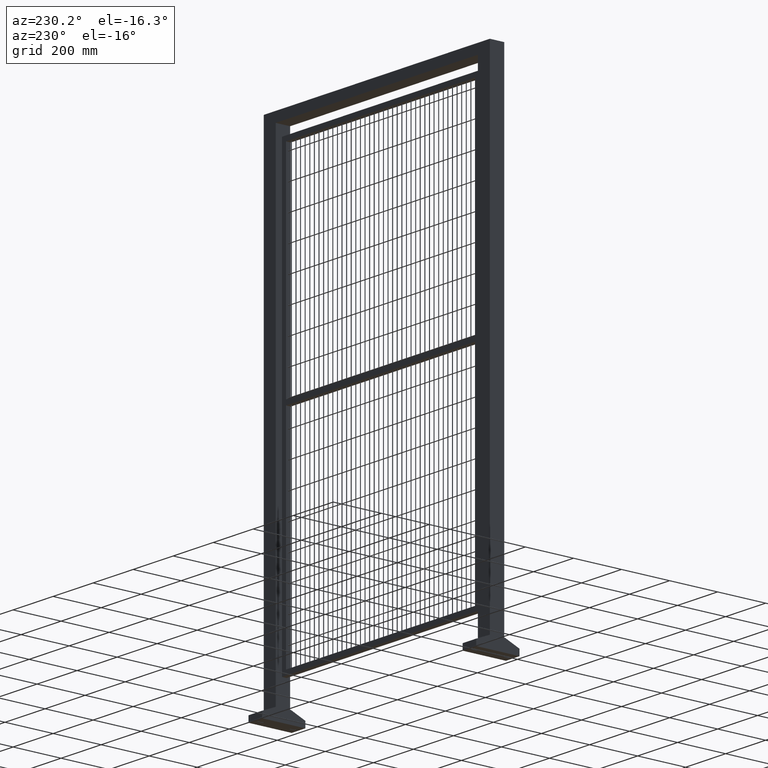
[diagram: clean part render]
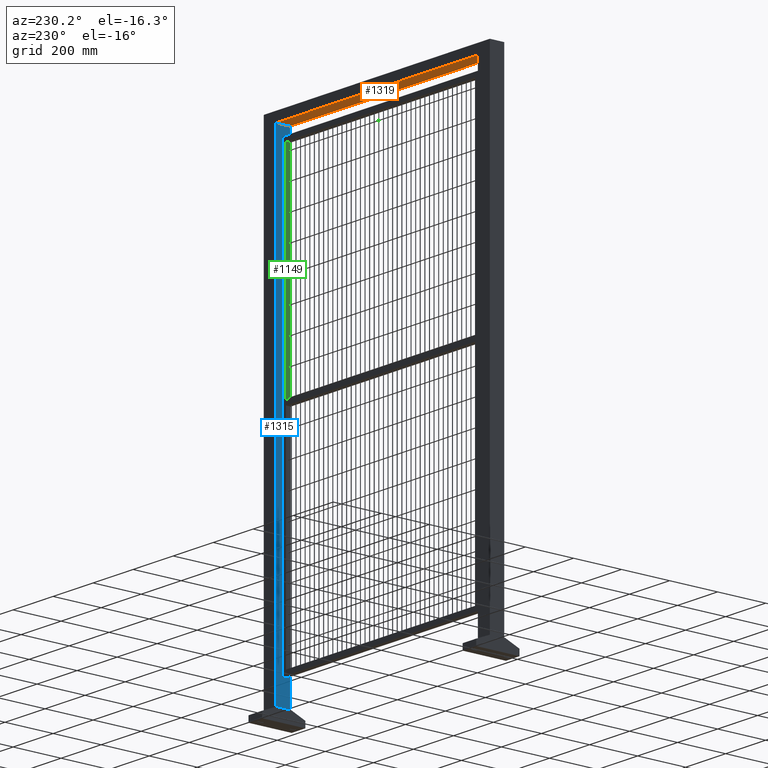
[diagram: same view with three faces highlighted in distinct colors, each labeled with its STEP entity id]
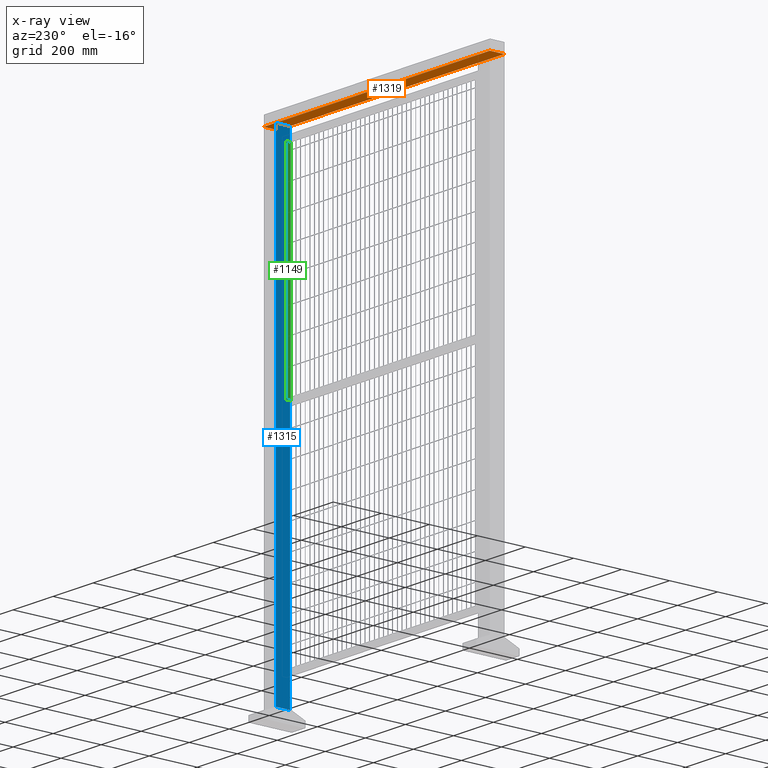
[diagram: x-ray of the same camera — body ghosted, the three highlighted faces saturated]
A machine part, auxiliary view with three faces highlighted in distinct colors.
The next image is the same camera in x-ray (body ghosted, the three faces saturated) — at least one of them is partly hidden behind the body in this view.
Their STEP definitions:

[orange] entity #1319 — the highlighted planar face has unit normal (-0, 0, 1).
#161=LINE('',#4553,#255);
#163=LINE('',#4557,#257);
#164=LINE('',#4559,#258);
#165=LINE('',#4561,#259);
#255=VECTOR('',#3916,1.);
#257=VECTOR('',#3920,1.);
#258=VECTOR('',#3921,1.);
#259=VECTOR('',#3922,1.);
#954=PLANE('',#3141);
#1103=FACE_OUTER_BOUND('',#1814,.T.);
#1319=ADVANCED_FACE('',(#1103),#954,.F.);
#1814=EDGE_LOOP('',(#2246,#2247,#2248,#2249));
#2246=ORIENTED_EDGE('',*,*,#2667,.T.);
#2247=ORIENTED_EDGE('',*,*,#2668,.F.);
#2248=ORIENTED_EDGE('',*,*,#2669,.F.);
#2249=ORIENTED_EDGE('',*,*,#2665,.T.);
#2446=VERTEX_POINT('',#4552);
#2447=VERTEX_POINT('',#4554);
#2448=VERTEX_POINT('',#4558);
#2449=VERTEX_POINT('',#4560);
#2665=EDGE_CURVE('',#2447,#2446,#161,.T.);
#2667=EDGE_CURVE('',#2446,#2448,#163,.T.);
#2668=EDGE_CURVE('',#2449,#2448,#164,.T.);
#2669=EDGE_CURVE('',#2447,#2449,#165,.T.);
#3141=AXIS2_PLACEMENT_3D('',#4562,#3923,#3924);
#3916=DIRECTION('',(0.,1.,0.));
#3920=DIRECTION('',(1.,0.,1.83697019872103E-16));
#3921=DIRECTION('',(0.,1.,0.));
#3922=DIRECTION('',(1.,0.,1.83697019872103E-16));
#3923=DIRECTION('',(-1.83697019872103E-16,0.,1.));
#3924=DIRECTION('',(1.,0.,1.83697019872103E-16));
#4552=CARTESIAN_POINT('',(-564.999999999993,30.,0.));
#4553=CARTESIAN_POINT('',(-564.999999999993,-30.,0.));
#4554=CARTESIAN_POINT('',(-564.999999999993,-30.,0.));
#4557=CARTESIAN_POINT('',(-564.999999999993,30.,0.));
#4558=CARTESIAN_POINT('',(564.999999999993,30.,2.07577632455474E-13));
#4559=CARTESIAN_POINT('',(564.999999999993,-30.,2.07577632455474E-13));
#4560=CARTESIAN_POINT('',(564.999999999993,-30.,2.07577632455474E-13));
#4561=CARTESIAN_POINT('',(-564.999999999993,-30.,0.));
#4562=CARTESIAN_POINT('',(-564.999999999993,-30.,0.));

[blue] entity #1315 — the highlighted planar face has unit normal (1, 0, 0).
#146=LINE('',#4521,#240);
#149=LINE('',#4527,#243);
#152=LINE('',#4533,#246);
#155=LINE('',#4538,#249);
#240=VECTOR('',#3887,1.);
#243=VECTOR('',#3892,1.);
#246=VECTOR('',#3897,1.);
#249=VECTOR('',#3902,1.);
#950=PLANE('',#3137);
#1099=FACE_OUTER_BOUND('',#1810,.T.);
#1315=ADVANCED_FACE('',(#1099),#950,.F.);
#1810=EDGE_LOOP('',(#2230,#2231,#2232,#2233));
#2230=ORIENTED_EDGE('',*,*,#2650,.F.);
#2231=ORIENTED_EDGE('',*,*,#2659,.F.);
#2232=ORIENTED_EDGE('',*,*,#2656,.F.);
#2233=ORIENTED_EDGE('',*,*,#2653,.F.);
#2436=VERTEX_POINT('',#4520);
#2437=VERTEX_POINT('',#4522);
#2439=VERTEX_POINT('',#4528);
#2441=VERTEX_POINT('',#4534);
#2650=EDGE_CURVE('',#2436,#2437,#146,.T.);
#2653=EDGE_CURVE('',#2437,#2439,#149,.T.);
#2656=EDGE_CURVE('',#2439,#2441,#152,.T.);
#2659=EDGE_CURVE('',#2441,#2436,#155,.T.);
#3137=AXIS2_PLACEMENT_3D('',#4540,#3905,#3906);
#3887=DIRECTION('',(0.,0.,-1.));
#3892=DIRECTION('',(-1.,0.,0.));
#3897=DIRECTION('',(1.78286071528963E-18,0.,1.));
#3902=DIRECTION('',(1.,0.,0.));
#3905=DIRECTION('',(0.,1.,0.));
#3906=DIRECTION('',(0.,0.,1.));
#4520=CARTESIAN_POINT('',(30.,-30.,1996.));
#4521=CARTESIAN_POINT('',(30.,-30.,1996.));
#4522=CARTESIAN_POINT('',(30.,-30.,50.));
#4527=CARTESIAN_POINT('',(30.,-30.,50.));
#4528=CARTESIAN_POINT('',(-30.,-30.,50.));
#4533=CARTESIAN_POINT('',(-30.,-30.,50.));
#4534=CARTESIAN_POINT('',(-30.,-30.,1996.));
#4538=CARTESIAN_POINT('',(-30.,-30.,1996.));
#4540=CARTESIAN_POINT('',(0.,-30.,0.));

[green] entity #1149 — the highlighted planar face has unit normal (-1, 0, -0).
#86=LINE('',#4064,#180);
#88=LINE('',#4070,#182);
#89=LINE('',#4073,#183);
#90=LINE('',#4074,#184);
#180=VECTOR('',#3303,1.);
#182=VECTOR('',#3309,1.);
#183=VECTOR('',#3310,1.);
#184=VECTOR('',#3311,1.);
#834=PLANE('',#2873);
#984=FACE_OUTER_BOUND('',#1588,.T.);
#1149=ADVANCED_FACE('',(#984),#834,.T.);
#1588=EDGE_LOOP('',(#1890,#1891,#1892,#1893));
#1890=ORIENTED_EDGE('',*,*,#2494,.F.);
#1891=ORIENTED_EDGE('',*,*,#2495,.T.);
#1892=ORIENTED_EDGE('',*,*,#2491,.T.);
#1893=ORIENTED_EDGE('',*,*,#2496,.F.);
#2301=VERTEX_POINT('',#4063);
#2302=VERTEX_POINT('',#4065);
#2304=VERTEX_POINT('',#4071);
#2305=VERTEX_POINT('',#4072);
#2491=EDGE_CURVE('',#2302,#2301,#86,.T.);
#2494=EDGE_CURVE('',#2304,#2305,#88,.T.);
#2495=EDGE_CURVE('',#2304,#2302,#89,.T.);
#2496=EDGE_CURVE('',#2305,#2301,#90,.T.);
#2873=AXIS2_PLACEMENT_3D('',#4075,#3312,#3313);
#3303=DIRECTION('',(0.,1.,0.));
#3309=DIRECTION('',(0.,1.,0.));
#3310=DIRECTION('',(-6.30808536718839E-17,0.,1.));
#3311=DIRECTION('',(-6.30808536718839E-17,0.,1.));
#3312=DIRECTION('',(-1.,0.,-6.30808536718839E-17));
#3313=DIRECTION('',(-5.55111512312578E-17,0.,1.));
#4063=CARTESIAN_POINT('',(472.5,10.,880.));
#4064=CARTESIAN_POINT('',(472.5,-10.,880.));
#4065=CARTESIAN_POINT('',(472.5,-10.,880.));
#4070=CARTESIAN_POINT('',(472.5,-10.,20.));
#4071=CARTESIAN_POINT('',(472.5,-10.,20.));
#4072=CARTESIAN_POINT('',(472.5,10.,20.));
#4073=CARTESIAN_POINT('',(472.5,-10.,-880.));
#4074=CARTESIAN_POINT('',(472.5,10.,-880.));
#4075=CARTESIAN_POINT('',(472.5,-10.,-880.));